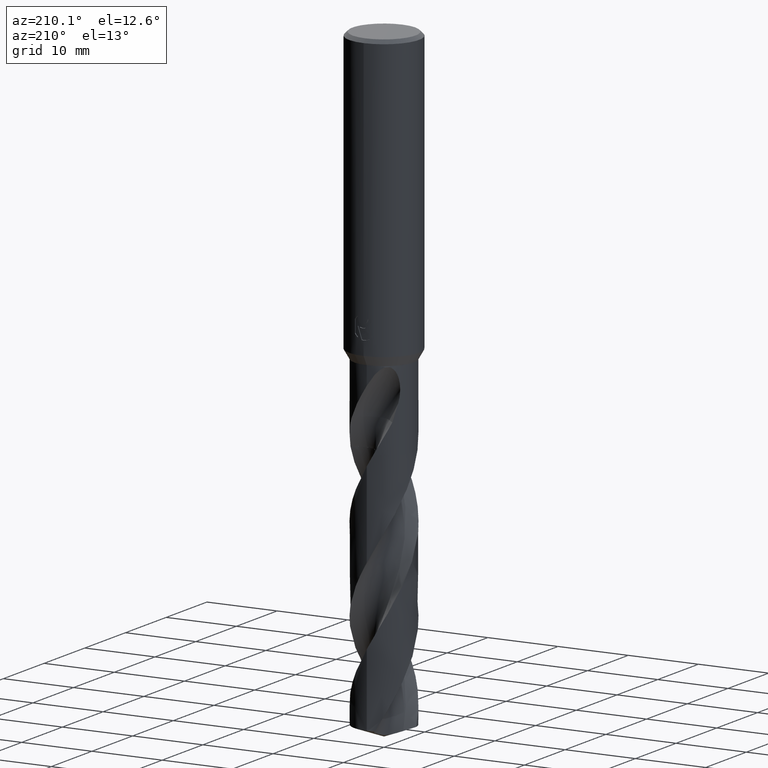
[diagram: clean part render]
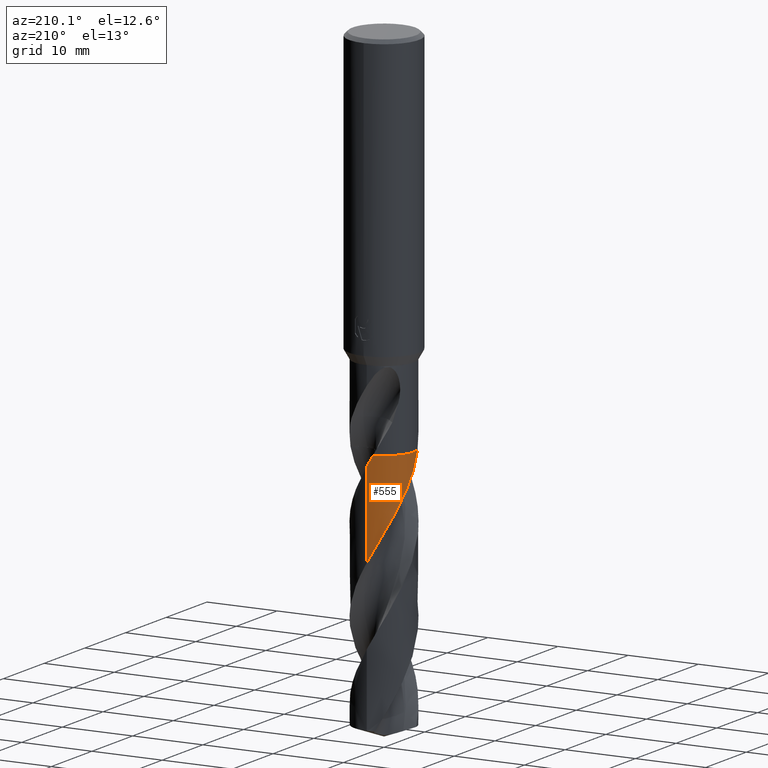
[diagram: same view with one face highlighted and labeled with its STEP entity id]
A machine part, auxiliary view. The second image highlights one B-rep face of the part: STEP entity #555.
In plain terms, the highlighted conical surface has half-angle 0 deg.
Its self-contained STEP definition (entity closure, byte-faithful):
#295=VERTEX_POINT('',#818);
#371=VERTEX_POINT('',#901);
#395=EDGE_CURVE('',#625,#659,#926,.T.);
#451=VERTEX_POINT('',#989);
#465=EDGE_CURVE('',#659,#451,#1003,.T.);
#555=ADVANCED_FACE('',(#1097),#1098,.T.);
#565=EDGE_CURVE('',#295,#625,#1108,.T.);
#623=EDGE_CURVE('',#371,#747,#1171,.T.);
#625=VERTEX_POINT('',#1173);
#659=VERTEX_POINT('',#1211);
#687=EDGE_CURVE('',#747,#295,#1242,.T.);
#745=EDGE_CURVE('',#451,#371,#1306,.T.);
#747=VERTEX_POINT('',#1308);
#818=CARTESIAN_POINT('',(-2.92487299391429E-015,4.24990427903232,-54.0913765494784));
#901=CARTESIAN_POINT('',(-0.85656218707298,4.16268557900747,-52.6));
#926=B_SPLINE_CURVE_WITH_KNOTS('',3,(#2744,#2745,#2746,#2747,#2748,#2749,#2750,#2751,#2752,#2753,#2754,#2755,#2756,#2757,#2758,#2759,#2760,#2761,#2762,#2763,#2764,#2765,#2766,#2767,#2768,#2769,#2770,#2771,#2772,#2773,#2774,#2775,#2776,#2777,#2778,#2779,#2780,#2781,#2782,#2783,#2784,#2785,#2786,#2787,#2788,#2789,#2790,#2791,#2792,#2793,#2794,#2795,#2796,#2797,#2798,#2799,#2800,#2801,#2802,#2803),.UNSPECIFIED.,.F.,.F.,(4,2,2,2,2,2,2,2,2,2,2,2,2,2,2,2,2,2,2,2,2,2,2,2,2,2,2,2,2,4),(0.0,2.29751554229338,3.85419713761857,4.21570429836474,5.77993959018392,7.88072847854698,9.23150955527223,10.3599611600164,11.6848246941048,12.3580886024831,13.3478919543972,14.8108387208206,17.1088663479608,18.761461086923,18.8123461574409,21.0045814881553,22.2759081016618,23.4786645164808,24.1627645835341,25.1394573892711,26.3488862223994,28.4471992355647,29.8002890490246,31.7044106817296,33.1766600241367,33.6204326449799,35.1793906356561,37.745772083954,38.3878729434457,40.3069231356241),.UNSPECIFIED.);
#989=CARTESIAN_POINT('',(-4.07557004338866,-1.20473185042686,-52.6));
#1003=B_SPLINE_CURVE_WITH_KNOTS('',3,(#3739,#3740,#3741,#3742),.UNSPECIFIED.,.F.,.F.,(4,4),(0.0,0.0109588681922414),.UNSPECIFIED.);
#1097=FACE_OUTER_BOUND('',#4967,.T.);
#1098=CONICAL_SURFACE('',#4968,4.24995,2.86918305555624E-006);
#1108=LINE('',#5051,#5052);
#1171=B_SPLINE_CURVE_WITH_KNOTS('',3,(#5271,#5272,#5273,#5274),.UNSPECIFIED.,.F.,.F.,(4,4),(0.0,0.00922730232033959),.UNSPECIFIED.);
#1173=CARTESIAN_POINT('',(1.16591792519443E-012,4.24993918034888,-66.2555765582582));
#1211=CARTESIAN_POINT('',(-4.07639185603204,-1.20194825138327,-52.605));
#1242=B_SPLINE_CURVE_WITH_KNOTS('',3,(#5745,#5746,#5747,#5748,#5749,#5750,#5751,#5752,#5753,#5754,#5755,#5756,#5757,#5758,#5759,#5760,#5761,#5762,#5763,#5764,#5765,#5766,#5767,#5768,#5769,#5770,#5771,#5772,#5773,#5774,#5775,#5776,#5777,#5778,#5779,#5780,#5781,#5782,#5783,#5784,#5785,#5786,#5787,#5788,#5789,#5790,#5791,#5792,#5793,#5794,#5795,#5796,#5797,#5798,#5799,#5800,#5801,#5802,#5803,#5804,#5805,#5806),.UNSPECIFIED.,.F.,.F.,(4,2,2,2,2,2,2,2,2,2,2,2,2,2,2,2,2,2,2,2,2,2,2,2,2,2,2,2,2,2,4),(0.0,1.67049817046966,3.38909740904153,5.02199569907375,6.66877495202229,7.41883070202367,9.05127730787014,10.6906580367705,12.3321711709247,13.1450460843952,14.7739502407564,16.4185701862064,18.0564791633911,19.6835010590607,21.3286989399336,21.7240429266092,24.4785001770486,24.5219904181697,27.0246942565936,27.8359869198644,29.373938129199,30.0548467186422,30.6865302194499,33.0600834733521,33.5083440408266,35.1963821792972,35.8317670917051,36.9411732694626,38.6094560410513,39.4442831777696,40.2795976064675),.UNSPECIFIED.);
#1306=CIRCLE('',#7198,4.2499);
#1308=CARTESIAN_POINT('',(-0.853725638122035,4.16326826746643,-52.605));
#2744=CARTESIAN_POINT('',(1.07965947315375,-4.11057604503668,-87.4531265043687));
#2745=CARTESIAN_POINT('',(1.45174821563612,-4.01284346299921,-86.7909279391318));
#2746=CARTESIAN_POINT('',(1.80789720795227,-3.86535591184367,-86.1239222616972));
#2747=CARTESIAN_POINT('',(2.36366390299523,-3.5416123160703,-85.0127869129268));
#2748=CARTESIAN_POINT('',(2.57544402814208,-3.39068043232703,-84.5668208865885));
#2749=CARTESIAN_POINT('',(2.81757295327436,-3.18234546930155,-84.0134953535482));
#2750=CARTESIAN_POINT('',(2.86230024490347,-3.14217485237856,-83.9091284245969));
#2751=CARTESIAN_POINT('',(3.09590065535449,-2.92325579816566,-83.3541252560357));
#2752=CARTESIAN_POINT('',(3.26924262532435,-2.72810394600505,-82.9061015297173));
#2753=CARTESIAN_POINT('',(3.63150115577713,-2.23548889337385,-81.8513914249777));
#2754=CARTESIAN_POINT('',(3.80325281267367,-1.92878116873445,-81.2448614483615));
#2755=CARTESIAN_POINT('',(4.02042941824312,-1.3961197416177,-80.251192600078));
#2756=CARTESIAN_POINT('',(4.08871719117284,-1.18125924073478,-79.864148088561));
#2757=CARTESIAN_POINT('',(4.18223125449048,-0.778845165351584,-79.1504607650499));
#2758=CARTESIAN_POINT('',(4.21252810024007,-0.593347366800973,-78.8244563663144));
#2759=CARTESIAN_POINT('',(4.25153783407359,-0.187534821314184,-78.1185524258673));
#2760=CARTESIAN_POINT('',(4.25557196956963,0.0331966463060552,-77.7391099823109));
#2761=CARTESIAN_POINT('',(4.23570728438226,0.365537285128519,-77.164793766839));
#2762=CARTESIAN_POINT('',(4.22458895122279,0.477106607975117,-76.9714543207789));
#2763=CARTESIAN_POINT('',(4.18631963128415,0.751039353506949,-76.4931479659428));
#2764=CARTESIAN_POINT('',(4.15413401682346,0.912376171940266,-76.2075112170342));
#2765=CARTESIAN_POINT('',(4.05141094339332,1.30665013771957,-75.5022562209417));
#2766=CARTESIAN_POINT('',(3.97002606517335,1.53636108657617,-75.0839559496561));
#2767=CARTESIAN_POINT('',(3.71101928260412,2.1063864632728,-74.0035541421579));
#2768=CARTESIAN_POINT('',(3.50654239146398,2.43160401460169,-73.3415914469681));
#2769=CARTESIAN_POINT('',(3.08477929739148,2.93631864641532,-72.2068427539324));
#2770=CARTESIAN_POINT('',(2.88869796317796,3.12929727554314,-71.7352107357407));
#2771=CARTESIAN_POINT('',(2.66944721023081,3.30699673137195,-71.2451156281054));
#2772=CARTESIAN_POINT('',(2.6628656592661,3.31229872122158,-71.2304401745666));
#2773=CARTESIAN_POINT('',(2.37092381926264,3.54604006435132,-70.581198427735));
#2774=CARTESIAN_POINT('',(2.05697731864742,3.73702247088415,-69.9544620932741));
#2775=CARTESIAN_POINT('',(1.52739059083242,3.97169150654468,-68.953722853102));
#2776=CARTESIAN_POINT('',(1.32708922829922,4.04301271202138,-68.5849335926352));
#2777=CARTESIAN_POINT('',(0.928576749747615,4.15212161547335,-67.8701804312945));
#2778=CARTESIAN_POINT('',(0.731146976497793,4.19141313032943,-67.5240569976882));
#2779=CARTESIAN_POINT('',(0.417891762545735,4.2308948380543,-66.9793786586341));
#2780=CARTESIAN_POINT('',(0.303903311622543,4.24059998976399,-66.7820817805426));
#2781=CARTESIAN_POINT('',(0.0268512356781822,4.25298280665278,-66.3023275063629));
#2782=CARTESIAN_POINT('',(-0.136158464330496,4.25088446554945,-66.019251174084));
#2783=CARTESIAN_POINT('',(-0.500176203877698,4.22522701237658,-65.3877661141143));
#2784=CARTESIAN_POINT('',(-0.700511520268538,4.19668696317454,-65.0397829785384));
#2785=CARTESIAN_POINT('',(-1.2414202602063,4.07971230695045,-64.0851606931671));
#2786=CARTESIAN_POINT('',(-1.5737695079371,3.96335611441781,-63.4776878314789));
#2787=CARTESIAN_POINT('',(-2.09064560623275,3.70705406373888,-62.4812172191184));
#2788=CARTESIAN_POINT('',(-2.28490035083039,3.59057658500267,-62.0923974542711));
#2789=CARTESIAN_POINT('',(-2.72794234500362,3.27436096726374,-61.1520092217599));
#2790=CARTESIAN_POINT('',(-2.96541986283597,3.06097898084252,-60.6004371902805));
#2791=CARTESIAN_POINT('',(-3.3405776452505,2.63875327891863,-59.6258138240993));
#2792=CARTESIAN_POINT('',(-3.48757473557789,2.44108134739134,-59.2030374532523));
#2793=CARTESIAN_POINT('',(-3.65535095567746,2.16925807022105,-58.6493521854629));
#2794=CARTESIAN_POINT('',(-3.69249641312376,2.10540436482298,-58.520960591555));
#2795=CARTESIAN_POINT('',(-3.85265140485523,1.81280848917576,-57.9424927889832));
#2796=CARTESIAN_POINT('',(-3.95642327026091,1.57367525521405,-57.4951254944686));
#2797=CARTESIAN_POINT('',(-4.17166802870324,0.918218623271444,-56.3055596002328));
#2798=CARTESIAN_POINT('',(-4.24295222726167,0.492807656410541,-55.5649330788039));
#2799=CARTESIAN_POINT('',(-4.25104078001503,-0.0430863440504819,-54.6394772345738));
#2800=CARTESIAN_POINT('',(-4.24859907276991,-0.150343130770212,-54.454527550622));
#2801=CARTESIAN_POINT('',(-4.22268891986625,-0.5773340593352,-53.7158923795869));
#2802=CARTESIAN_POINT('',(-4.16719843953819,-0.894010640739982,-53.1580921748818));
#2803=CARTESIAN_POINT('',(-4.07636418007444,-1.20204209544953,-52.6048314383729));
#3739=CARTESIAN_POINT('',(-4.07712618722079,-1.1994549989974,-52.6094778708523));
#3740=CARTESIAN_POINT('',(-4.07660863448405,-1.20121420571532,-52.6063185324889));
#3741=CARTESIAN_POINT('',(-4.07608991987406,-1.20297315656781,-52.6031592423652));
#3742=CARTESIAN_POINT('',(-4.07557004338866,-1.20473185042687,-52.6));
#4967=EDGE_LOOP('',(#8590,#8591,#8592,#8593,#8594,#8595));
#4968=AXIS2_PLACEMENT_3D('',#8596,#8597,#8598);
#5051=CARTESIAN_POINT('',(-5.2068106864658E-016,4.24995,-70.0265632521843));
#5052=VECTOR('',#8599,1.0);
#5271=CARTESIAN_POINT('',(-0.856562187072997,4.16268557900745,-52.6));
#5272=CARTESIAN_POINT('',(-0.85505233386869,4.1629962716104,-52.602661608302));
#5273=CARTESIAN_POINT('',(-0.85354231475404,4.16330614210773,-52.6053232180173));
#5274=CARTESIAN_POINT('',(-0.852032130351724,4.16361519038182,-52.607984829974));
#5745=CARTESIAN_POINT('',(-0.854380163967011,4.16313399246552,-52.6038463244049));
#5746=CARTESIAN_POINT('',(-0.581009482802093,4.21923796688139,-53.0857005520333));
#5747=CARTESIAN_POINT('',(-0.30300163317502,4.2482307340058,-53.5670206782771));
#5748=CARTESIAN_POINT('',(0.262148531877756,4.25148322824653,-54.5450382495628));
#5749=CARTESIAN_POINT('',(0.548289650594624,4.22414328961847,-55.0387670932767));
#5750=CARTESIAN_POINT('',(1.09697557516256,4.11493292318299,-56.0055115024868));
#5751=CARTESIAN_POINT('',(1.35844242275214,4.03615331575785,-56.4758322360659));
#5752=CARTESIAN_POINT('',(1.8645965856856,3.82889908021374,-57.4221126800411));
#5753=CARTESIAN_POINT('',(2.10819943068047,3.7003872111437,-57.8958574933656));
#5754=CARTESIAN_POINT('',(2.44238188937372,3.48026553924224,-58.5871226060153));
#5755=CARTESIAN_POINT('',(2.54381412550938,3.40682636128369,-58.8033119846395));
#5756=CARTESIAN_POINT('',(2.85513338322842,3.15977632019887,-59.490687315638));
#5757=CARTESIAN_POINT('',(3.05175495054182,2.97033179177519,-59.9609105953439));
#5758=CARTESIAN_POINT('',(3.40685388417338,2.55540231260124,-60.9047171539965));
#5759=CARTESIAN_POINT('',(3.56421672555315,2.33087796142221,-61.3762399995749));
#5760=CARTESIAN_POINT('',(3.8337066266945,1.85460080927199,-62.3229297379768));
#5761=CARTESIAN_POINT('',(3.94526086070864,1.6037212344577,-62.7954443629506));
#5762=CARTESIAN_POINT('',(4.07482129325525,1.21497533248925,-63.5034200185067));
#5763=CARTESIAN_POINT('',(4.11152289487915,1.08429499926252,-63.7376273391429));
#5764=CARTESIAN_POINT('',(4.2027962934798,0.687245258365986,-64.4421871093405));
#5765=CARTESIAN_POINT('',(4.23815383333247,0.417064128770743,-64.9115770602904));
#5766=CARTESIAN_POINT('',(4.2568398855569,-0.129078531940505,-65.8560444542354));
#5767=CARTESIAN_POINT('',(4.23961608470839,-0.40363065677464,-66.3289338199034));
#5768=CARTESIAN_POINT('',(4.15270517874911,-0.944305013973669,-67.2762427692953));
#5769=CARTESIAN_POINT('',(4.0834008522297,-1.20940292812213,-67.7479275935338));
#5770=CARTESIAN_POINT('',(3.89533605713563,-1.72110629509327,-68.6898903151551));
#5771=CARTESIAN_POINT('',(3.77741995964191,-1.96642673190124,-69.158285849088));
#5772=CARTESIAN_POINT('',(3.49498905604257,-2.43361163996216,-70.1026382047501));
#5773=CARTESIAN_POINT('',(3.33050500533192,-2.654298141104,-70.5761261255996));
#5774=CARTESIAN_POINT('',(3.1013930287166,-2.90651376646281,-71.1648243212757));
#5775=CARTESIAN_POINT('',(3.05588216240279,-2.95432650661408,-71.2788275331304));
#5776=CARTESIAN_POINT('',(2.68459702251814,-3.32663286597822,-72.1877450229486));
#5777=CARTESIAN_POINT('',(2.30907114883333,-3.59749366762361,-72.9784255945457));
#5778=CARTESIAN_POINT('',(1.89094076184852,-3.80612171034649,-73.7858163627063));
#5779=CARTESIAN_POINT('',(1.88443301275726,-3.80934797179131,-73.7983665771593));
#5780=CARTESIAN_POINT('',(1.50293897444915,-3.9972593799287,-74.5332142983214));
#5781=CARTESIAN_POINT('',(1.10261396202161,-4.12568566017994,-75.2532725303153));
#5782=CARTESIAN_POINT('',(0.556279993855153,-4.21558429494895,-76.2098743329043));
#5783=CARTESIAN_POINT('',(0.421611518979427,-4.23117280317589,-76.4438056052329));
#5784=CARTESIAN_POINT('',(0.0302693456878851,-4.25761288049897,-77.1221465612162));
#5785=CARTESIAN_POINT('',(-0.227039881656853,-4.25167170244815,-77.565708396621));
#5786=CARTESIAN_POINT('',(-0.595293205447924,-4.20961253252075,-78.2063399055048));
#5787=CARTESIAN_POINT('',(-0.707753718631786,-4.19217236686423,-78.4028109223522));
#5788=CARTESIAN_POINT('',(-0.922967524451349,-4.14988682072124,-78.7817426472689));
#5789=CARTESIAN_POINT('',(-1.02570621716136,-4.12569362711463,-78.9639673975049));
#5790=CARTESIAN_POINT('',(-1.50959616623593,-3.99256190009997,-79.8318136031566));
#5791=CARTESIAN_POINT('',(-1.87537141265567,-3.83440607163284,-80.5144923377703));
#5792=CARTESIAN_POINT('',(-2.27792653039836,-3.58873428700254,-81.3292376477054));
#5793=CARTESIAN_POINT('',(-2.34081128585769,-3.54803662130081,-81.4585947379318));
#5794=CARTESIAN_POINT('',(-2.63519043402542,-3.34629049624956,-82.0755851174871));
#5795=CARTESIAN_POINT('',(-2.85139068731225,-3.16409509497216,-82.5626323997256));
#5796=CARTESIAN_POINT('',(-3.12192929691863,-2.88569309576844,-83.2337146426684));
#5797=CARTESIAN_POINT('',(-3.19304741443232,-2.80680026849998,-83.4171384572335));
#5798=CARTESIAN_POINT('',(-3.38005229130741,-2.58302979612555,-83.9210315994624));
#5799=CARTESIAN_POINT('',(-3.48947985627859,-2.43316465277077,-84.241084421063));
#5800=CARTESIAN_POINT('',(-3.7380227257152,-2.04139079376085,-85.0434642694127));
#5801=CARTESIAN_POINT('',(-3.86386080769395,-1.7918757008391,-85.5241405592159));
#5802=CARTESIAN_POINT('',(-4.01468001990514,-1.40153251401799,-86.2469832690509));
#5803=CARTESIAN_POINT('',(-4.05850375734582,-1.26903991169383,-86.4876596970117));
#5804=CARTESIAN_POINT('',(-4.13297370713124,-1.00023889682436,-86.9702446981691));
#5805=CARTESIAN_POINT('',(-4.16356390248431,-0.864096509271642,-87.2116940791935));
#5806=CARTESIAN_POINT('',(-4.18740231547273,-0.726747444697016,-87.4531265043687));
#7198=AXIS2_PLACEMENT_3D('',#8798,#8799,#8800);
#8590=ORIENTED_EDGE('',*,*,#565,.T.);
#8591=ORIENTED_EDGE('',*,*,#395,.T.);
#8592=ORIENTED_EDGE('',*,*,#465,.T.);
#8593=ORIENTED_EDGE('',*,*,#745,.T.);
#8594=ORIENTED_EDGE('',*,*,#623,.T.);
#8595=ORIENTED_EDGE('',*,*,#687,.T.);
#8596=CARTESIAN_POINT('',(0.0,0.0,-70.0265632521843));
#8597=DIRECTION('',(0.0,-0.0,-1.0));
#8598=DIRECTION('',(0.0,1.0,0.0));
#8599=DIRECTION('',(-3.51361980010885E-022,2.8691830555523E-006,-0.999999999995884));
#8798=CARTESIAN_POINT('',(0.0,0.0,-52.6));
#8799=DIRECTION('',(0.0,0.0,-1.0));
#8800=DIRECTION('',(0.0,1.0,0.0));